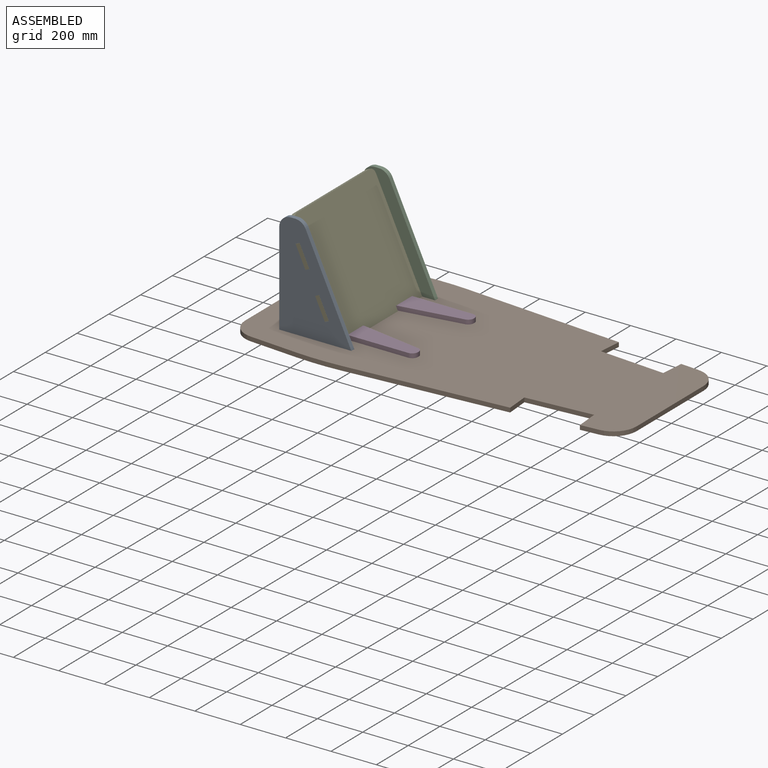
[diagram: assembled view]
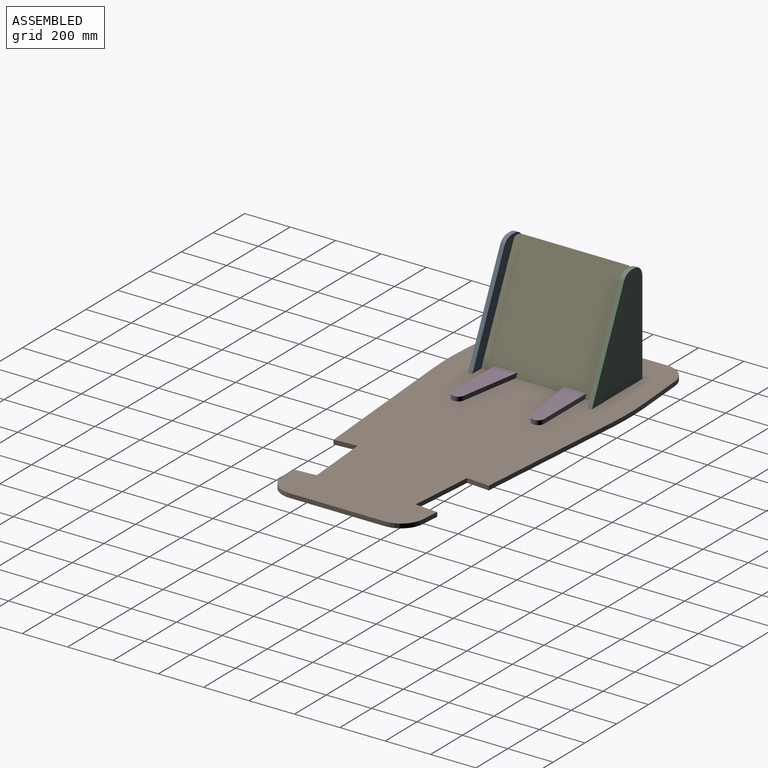
[diagram: assembled view, second angle]
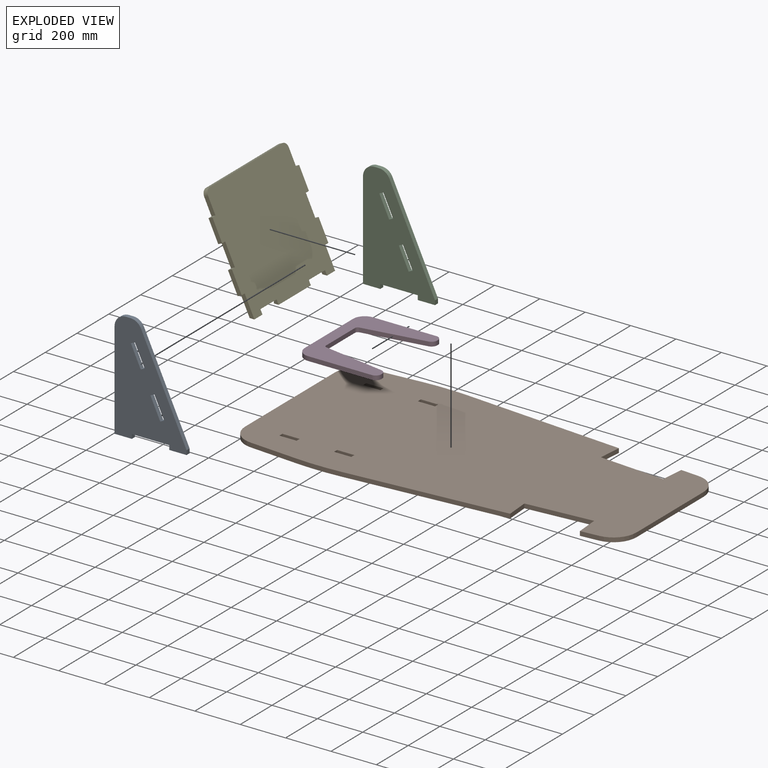
[diagram: exploded view]
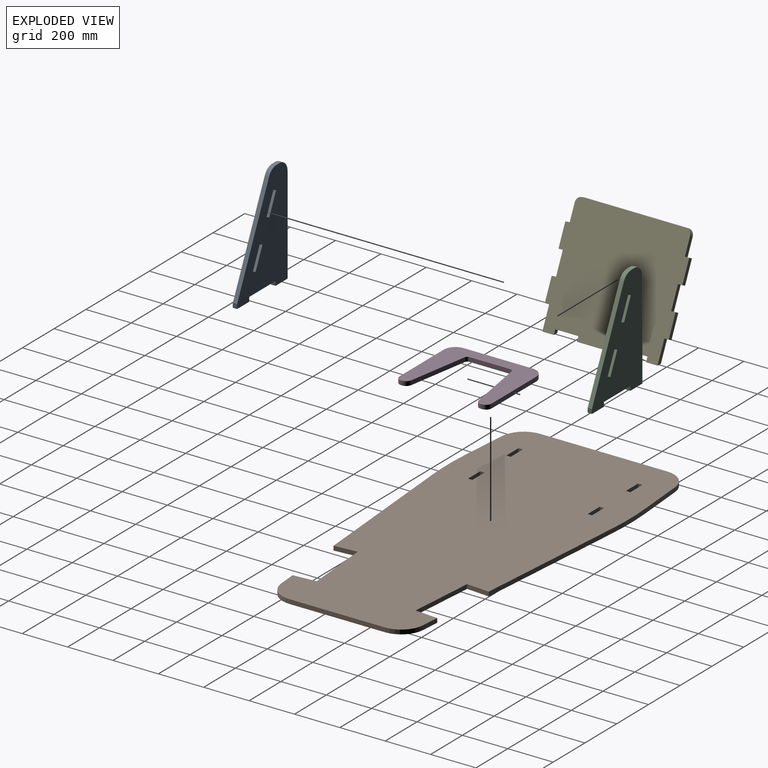
[diagram: exploded view, second angle]
ASSEMBLY  parts=5 mates=4
PART A: 21 faces, bbox 317.5x19.1x479.5 mm
  f0: plane 76.2x19.05mm, normal (0,0,-1), area 1451.6mm2, adj f1,f16,f17,f18
  f1: plane 19.05x19.05mm, normal (1,0,0), area 362.9mm2, adj f0,f2,f17,f18
  f2: plane 165.1x19.05mm, normal (0,0,-1), area 3145.2mm2, adj f1,f3,f17,f18
  f3: plane 19.05x19.05mm, normal (-1,0,0), area 362.9mm2, adj f2,f4,f17,f18
  f4: plane 76.2x19.05mm, normal (0,0,-1), area 1451.6mm2, adj f3,f5,f17,f18
  f5: plane 19.05x19.05mm, normal (1,0,0), area 362.9mm2, adj f4,f6,f17,f18
  f6: plane 431.07x201.01mm, normal (0.91,0,0.42), area 9060.9mm2, adj f5,f17,f18,f19
  f7: plane 19.65x19.05mm, normal (0,0,1), area 374.3mm2, adj f17,f18,f19,f20
  f8: plane 92.31x43.05mm, normal (-0.91,0,-0.42), area 1940.3mm2, adj f9,f14,f17,f18
  f9: plane 19.05x17.5mm, normal (-0.42,0,0.91), area 367.7mm2, adj f8,f10,f17,f18
  f10: plane 92.31x43.05mm, normal (0.91,0,0.42), area 1940.3mm2, adj f9,f14,f17,f18
  f11: plane 92.31x43.05mm, normal (-0.91,0,-0.42), area 1940.3mm2, adj f12,f15,f17,f18
  f12: plane 19.05x17.5mm, normal (-0.42,0,0.91), area 367.7mm2, adj f11,f13,f17,f18
  f13: plane 92.31x43.05mm, normal (0.91,0,0.42), area 1940.3mm2, adj f12,f15,f17,f18
  f14: plane 19.05x17.5mm, normal (0.42,0,-0.91), area 367.7mm2, adj f8,f10,f17,f18
  f15: plane 19.05x17.5mm, normal (0.42,0,-0.91), area 367.7mm2, adj f11,f13,f17,f18
  f16: plane 428.65x19.05mm, normal (-1,0,0), area 8165.9mm2, adj f0,f17,f18,f20
  f17: plane 479.45x317.5mm, normal (0,-1,0), area 94993.1mm2, adj f0,f1,f2,f3,f4,f5,f6,f7
  f18: plane 479.45x317.5mm, normal (0,1,0), area 94993.1mm2, adj f0,f1,f2,f3,f4,f5,f6,f7
  f19: cylinder r=50.8mm len=46.04mm, axis (0,1,0), area 1097.9mm2, adj f6,f7,f17,f18
  f20: cylinder r=50.8mm len=50.8mm, axis (0,-1,0), area 1520.1mm2, adj f7,f16,f17,f18
PART B: 38 faces, bbox 804.7x1676.4x19.1 mm
  f0: plane 703.26x56.26mm, normal (-1,-0.08,0), area 13440mm2, adj f2,f3,f30,f36
  f1: plane 703.26x56.26mm, normal (1,-0.08,0), area 13440mm2, adj f2,f3,f31,f32
  f2: plane 1676.4x804.69mm, normal (0,0,1), area 1147377.7mm2, adj f0,f1,f4,f5,f6,f7,f8,f9
  f3: plane 1676.4x804.69mm, normal (0,0,-1), area 1147377.7mm2, adj f0,f1,f4,f5,f6,f7,f8,f9
  f4: plane 76.45x19.05mm, normal (-1,0,0), area 1456.4mm2, adj f2,f3,f5,f25
  f5: plane 19.3x19.05mm, normal (0,1,0), area 367.7mm2, adj f2,f3,f4,f6
  f6: plane 76.45x19.05mm, normal (1,0,0), area 1456.4mm2, adj f2,f3,f5,f25
  f7: plane 76.45x19.05mm, normal (-1,0,0), area 1456.4mm2, adj f2,f3,f8,f21
  f8: plane 19.3x19.05mm, normal (0,1,0), area 367.7mm2, adj f2,f3,f7,f9
  f9: plane 76.45x19.05mm, normal (1,0,0), area 1456.4mm2, adj f2,f3,f8,f21
  f10: plane 19.3x19.05mm, normal (0,1,0), area 367.7mm2, adj f2,f3,f11,f22
  f11: plane 76.45x19.05mm, normal (1,0,0), area 1456.4mm2, adj f2,f3,f10,f12
  f12: plane 19.3x19.05mm, normal (0,-1,0), area 367.7mm2, adj f2,f3,f11,f22
  f13: plane 560.18x19.05mm, normal (0,1,0), area 10671.5mm2, adj f2,f3,f26,f29
  f14: plane 211.63x19.05mm, normal (-1,0.08,0), area 4044.3mm2, adj f2,f3,f26,f30
  f15: plane 80.79x19.05mm, normal (-1,-0.08,0), area 1544mm2, adj f2,f3,f27,f37
  f16: plane 422.01x19.05mm, normal (0,-1,0), area 8039.2mm2, adj f2,f3,f27,f28
  f17: plane 80.79x19.05mm, normal (1,-0.08,0), area 1544mm2, adj f2,f3,f28,f34
  f18: plane 76.45x19.05mm, normal (-1,0,0), area 1456.4mm2, adj f2,f3,f19,f24
  f19: plane 19.3x19.05mm, normal (0,1,0), area 367.7mm2, adj f2,f3,f18,f20
  f20: plane 76.45x19.05mm, normal (1,0,0), area 1456.4mm2, adj f2,f3,f19,f24
  f21: plane 19.3x19.05mm, normal (0,-1,0), area 367.7mm2, adj f2,f3,f7,f9
  f22: plane 76.45x19.05mm, normal (-1,0,0), area 1456.4mm2, adj f2,f3,f10,f12
  f23: plane 211.63x19.05mm, normal (1,0.08,0), area 4044.3mm2, adj f2,f3,f29,f31
  f24: plane 19.3x19.05mm, normal (0,-1,0), area 367.7mm2, adj f2,f3,f18,f20
  f25: plane 19.3x19.05mm, normal (0,-1,0), area 367.7mm2, adj f2,f3,f4,f6
  f26: cylinder r=101.6mm len=101.28mm, axis (0,0,1), area 2885.7mm2, adj f2,f3,f13,f14
  f27: cylinder r=101.6mm len=101.28mm, axis (0,0,-1), area 2885.7mm2, adj f2,f3,f15,f16
  f28: cylinder r=101.6mm len=101.28mm, axis (0,0,1), area 2885.7mm2, adj f2,f3,f16,f17
  f29: cylinder r=101.6mm len=101.28mm, axis (0,0,-1), area 2885.7mm2, adj f2,f3,f13,f23
  f30: cylinder r=1270mm len=202.55mm, axis (0,0,1), area 3862.7mm2, adj f0,f2,f3,f14
  f31: cylinder r=1270mm len=202.55mm, axis (0,0,1), area 3862.7mm2, adj f1,f2,f3,f23
  f32: plane 100.95x19.05mm, normal (-0.08,-1,0), area 1929.3mm2, adj f1,f2,f3,f33
  f33: plane 291.17x23.29mm, normal (1,-0.08,0), area 5564.5mm2, adj f2,f3,f32,f34
  f34: plane 100.95x19.05mm, normal (0.08,1,0), area 1929.3mm2, adj f2,f3,f17,f33
  f35: plane 291.17x23.29mm, normal (-1,-0.08,0), area 5564.5mm2, adj f2,f3,f36,f37
  f36: plane 100.95x19.05mm, normal (0.08,-1,0), area 1929.3mm2, adj f0,f2,f3,f35
  f37: plane 100.95x19.05mm, normal (-0.08,1,0), area 1929.3mm2, adj f2,f3,f15,f35
PART C: same geometry as A
PART D: 18 faces, bbox 406.4x355.6x19.1 mm
  f0: plane 272.96x45.49mm, normal (0.99,-0.16,0), area 5271.7mm2, adj f8,f9,f15,f16
  f1: plane 181.68x19.05mm, normal (0,-1,0), area 3461.1mm2, adj f8,f9,f16,f17
  f2: plane 272.96x45.49mm, normal (-0.99,-0.16,0), area 5271.7mm2, adj f8,f9,f12,f17
  f3: plane 19.05x3.88mm, normal (0,-1,0), area 74mm2, adj f8,f9,f12,f13
  f4: plane 279.4x19.05mm, normal (1,0,0), area 5322.6mm2, adj f8,f9,f10,f13
  f5: plane 304.8x19.05mm, normal (0,1,0), area 5806.4mm2, adj f8,f9,f10,f11
  f6: plane 279.4x19.05mm, normal (-1,0,0), area 5322.6mm2, adj f8,f9,f11,f14
  f7: plane 19.05x3.88mm, normal (0,-1,0), area 74mm2, adj f8,f9,f14,f15
  f8: plane 406.4x355.6mm, normal (0,0,1), area 65572.5mm2, adj f0,f1,f2,f3,f4,f5,f6,f7
  f9: plane 406.4x355.6mm, normal (0,0,-1), area 65572.5mm2, adj f0,f1,f2,f3,f4,f5,f6,f7
  f10: cylinder r=50.8mm len=50.8mm, axis (0,0,-1), area 1520.1mm2, adj f4,f5,f8,f9
  f11: cylinder r=50.8mm len=50.8mm, axis (0,0,1), area 1520.1mm2, adj f5,f6,f8,f9
  f12: cylinder r=25.4mm len=25.05mm, axis (0,0,1), area 680.2mm2, adj f2,f3,f8,f9
  f13: cylinder r=25.4mm len=25.4mm, axis (0,0,-1), area 760.1mm2, adj f3,f4,f8,f9
  f14: cylinder r=25.4mm len=25.4mm, axis (0,0,-1), area 760.1mm2, adj f6,f7,f8,f9
  f15: cylinder r=25.4mm len=25.05mm, axis (0,0,-1), area 680.2mm2, adj f0,f7,f8,f9
  f16: cylinder r=12.7mm len=19.05mm, axis (0,0,1), area 340.1mm2, adj f0,f1,f8,f9
  f17: cylinder r=12.7mm len=19.05mm, axis (0,0,1), area 340.1mm2, adj f1,f2,f8,f9
PART E: 33 faces, bbox 546.1x508x19.1 mm
  f0: plane 26.36x19.05mm, normal (1,0,0), area 318.8mm2, adj f2,f3,f5,f31,f32
  f1: plane 26.36x19.05mm, normal (-1,0,0), area 318.8mm2, adj f2,f3,f5,f31,f32
  f2: plane 202.69x0.03mm, normal (0,0,-1), area 5.7mm2, adj f0,f1,f3,f32
  f3: plane 202.69x19.05mm, normal (0,-0.91,-0.42), area 4260.5mm2, adj f0,f1,f2,f5
  f4: plane 50.8x19.05mm, normal (0,-0.91,-0.42), area 1067.8mm2, adj f5,f6,f14,f29
  f5: plane 546.1x508mm, normal (0,0,1), area 261195.8mm2, adj f0,f1,f3,f4,f7,f8,f9,f10
  f6: plane 546.1x499.12mm, normal (0,0,-1), area 252371.6mm2, adj f4,f7,f8,f9,f10,f11,f12,f13
  f7: plane 101.6x19.05mm, normal (-1,0,0), area 1935.5mm2, adj f5,f6,f8,f25
  f8: plane 19.05x19.05mm, normal (0,-1,0), area 362.9mm2, adj f5,f6,f7,f9
  f9: plane 101.6x19.05mm, normal (-1,0,0), area 1935.5mm2, adj f5,f6,f8,f10
  f10: plane 19.05x19.05mm, normal (0,1,0), area 362.9mm2, adj f5,f6,f9,f11
  f11: plane 101.6x19.05mm, normal (-1,0,0), area 1935.5mm2, adj f5,f6,f10,f12
  f12: plane 19.05x19.05mm, normal (0,-1,0), area 362.9mm2, adj f5,f6,f11,f13
  f13: plane 101.6x19.05mm, normal (-1,0,0), area 1850.9mm2, adj f5,f6,f12,f28
  f14: plane 101.6x19.05mm, normal (1,0,0), area 1850.9mm2, adj f4,f5,f6,f15
  f15: plane 19.05x19.05mm, normal (0,-1,0), area 362.9mm2, adj f5,f6,f14,f16
  f16: plane 101.6x19.05mm, normal (1,0,0), area 1935.5mm2, adj f5,f6,f15,f17
  f17: plane 19.05x19.05mm, normal (0,1,0), area 362.9mm2, adj f5,f6,f16,f18
  f18: plane 101.6x19.05mm, normal (1,0,0), area 1935.5mm2, adj f5,f6,f17,f19
  f19: plane 19.05x19.05mm, normal (0,-1,0), area 362.9mm2, adj f5,f6,f18,f20
  f20: plane 101.6x19.05mm, normal (1,0,0), area 1935.5mm2, adj f5,f6,f19,f21
  f21: plane 19.05x19.05mm, normal (0,1,0), area 362.9mm2, adj f5,f6,f20,f22
  f22: plane 76.2x19.05mm, normal (1,0,0), area 1451.6mm2, adj f5,f6,f21,f26
  f23: plane 457.2x19.05mm, normal (0,1,0), area 8709.7mm2, adj f5,f6,f26,f27
  f24: plane 76.2x19.05mm, normal (-1,0,0), area 1451.6mm2, adj f5,f6,f25,f27
  f25: plane 19.05x19.05mm, normal (0,1,0), area 362.9mm2, adj f5,f6,f7,f24
  f26: cylinder r=25.4mm len=25.4mm, axis (0,0,1), area 760.1mm2, adj f5,f6,f22,f23
  f27: cylinder r=25.4mm len=25.4mm, axis (0,0,-1), area 760.1mm2, adj f5,f6,f23,f24
  f28: plane 50.8x19.05mm, normal (0,-0.91,-0.42), area 1067.8mm2, adj f5,f6,f13,f30
  f29: plane 30.15x19.05mm, normal (-1,0,0), area 405.2mm2, adj f4,f5,f6,f31
  f30: plane 30.15x19.05mm, normal (1,0,0), area 405.2mm2, adj f5,f6,f28,f31
  f31: plane 406.4x19.05mm, normal (0,-0.91,-0.42), area 6101.6mm2, adj f0,f1,f5,f6,f29,f30,f32
  f32: plane 202.69x17.45mm, normal (0,0.42,-0.91), area 3902.5mm2, adj f0,f1,f2,f31
PLACE A t=(-178.76,37.27,165.24)mm
PLACE B rot(axis=(0,0,1),90deg) t=(1290.32,291.52,146.19)mm
PLACE C t=(-178.76,564.32,165.24)mm
PLACE D rot(axis=(0,0,1),90deg) t=(-51.77,189.67,165.49)mm
PLACE E rot(axis=(0.47,0.47,0.74),106.8deg) t=(2.8,37.27,157.31)mm
MATE fastened E.f32 <-> D.f1  axis (-1,0,0) through (-0.97,291.27,175.02)mm
MATE fastened A.f17 <-> E.f11  axis (0,1,0) through (-83.08,18.22,341.47)mm
MATE fastened A.f4 <-> B.f3  axis (0,0,-1) through (0.25,18.22,146.19)mm
MATE fastened E.f16 <-> C.f18  axis (0,1,0) through (-83.08,564.32,341.47)mm
